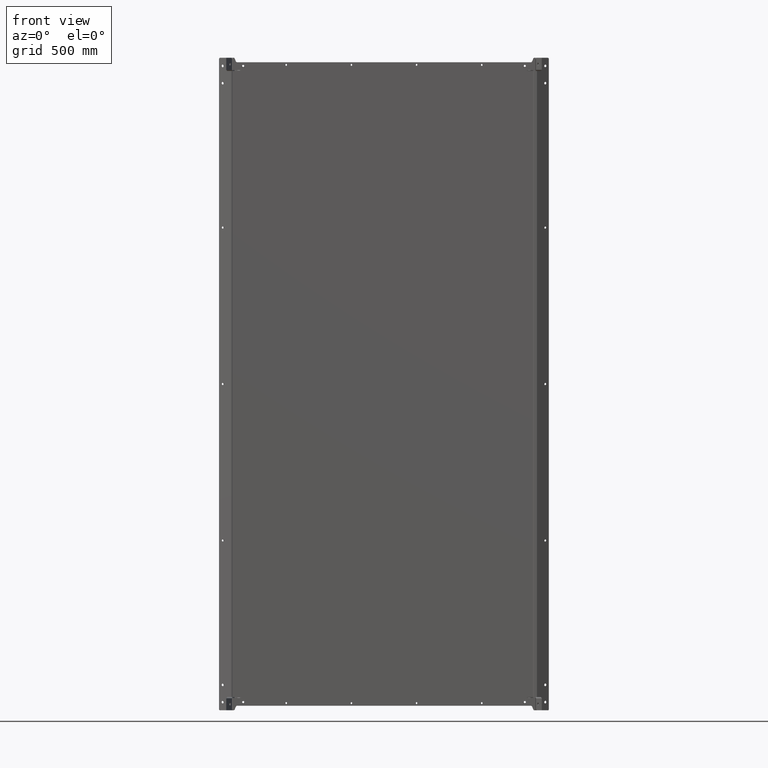
[diagram: clean part render]
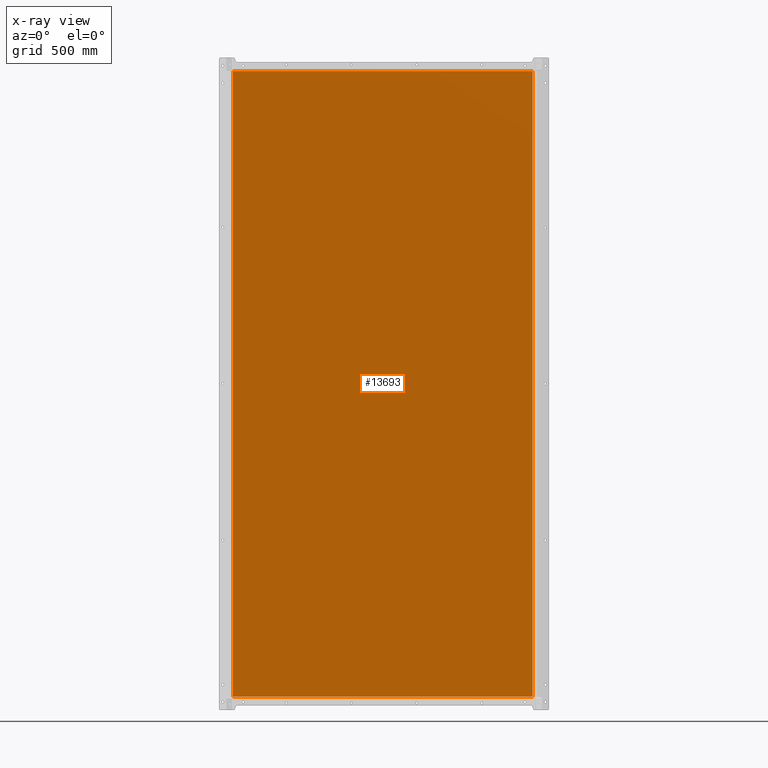
[diagram: x-ray — body ghosted, one internal face saturated and labeled with its STEP entity id]
A machine part, front view, then the same camera in x-ray: the body is ghosted and one INTERNAL B-rep face — a face not visible from any outside direction — is saturated and labeled: STEP entity #13693.
In plain terms, the highlighted planar face has unit normal (0, 1, 0).
Its self-contained STEP definition (entity closure, byte-faithful):
#628 = DIRECTION ( 'NONE',  ( 0.000000000000000000, 0.000000000000000000, -1.000000000000000000 ) ) ;
#1140 = CARTESIAN_POINT ( 'NONE',  ( 1199.999999999999773, -24.55000000000019611, 570.0000000000001137 ) ) ;
#1471 = PLANE ( 'NONE',  #7482 ) ;
#1745 = ORIENTED_EDGE ( 'NONE', *, *, #4064, .F. ) ;
#2537 = ORIENTED_EDGE ( 'NONE', *, *, #4923, .T. ) ;
#2592 = VECTOR ( 'NONE', #7640, 1000.000000000000000 ) ;
#3157 = DIRECTION ( 'NONE',  ( -1.000000000000000000, -0.000000000000000000, -0.000000000000000000 ) ) ;
#3606 = CARTESIAN_POINT ( 'NONE',  ( -1200.000000000000227, -24.55000000000000071, 573.0000000000000000 ) ) ;
#4015 = VECTOR ( 'NONE', #11395, 1000.000000000000000 ) ;
#4064 = EDGE_CURVE ( 'NONE', #12900, #8375, #4831, .T. ) ;
#4301 = CARTESIAN_POINT ( 'NONE',  ( 1199.999999999999773, -24.55000000000000071, -579.9999999999998863 ) ) ;
#4377 = CARTESIAN_POINT ( 'NONE',  ( 1199.999999999999773, -24.55000000000000071, 570.0000000000001137 ) ) ;
#4545 = CARTESIAN_POINT ( 'NONE',  ( 0.000000000000000000, -24.55000000000000071, 0.000000000000000000 ) ) ;
#4574 = EDGE_CURVE ( 'NONE', #11632, #8375, #12407, .T. ) ;
#4831 = LINE ( 'NONE', #1140, #2592 ) ;
#4923 = EDGE_CURVE ( 'NONE', #11976, #11632, #12951, .T. ) ;
#5080 = CARTESIAN_POINT ( 'NONE',  ( 1199.999999999999773, -24.55000000000000071, -579.9999999999998863 ) ) ;
#5689 = DIRECTION ( 'NONE',  ( 0.000000000000000000, 1.000000000000000000, 0.000000000000000000 ) ) ;
#7274 = VECTOR ( 'NONE', #3157, 1000.000000000000000 ) ;
#7482 = AXIS2_PLACEMENT_3D ( 'NONE', #4545, #5689, #10184 ) ;
#7640 = DIRECTION ( 'NONE',  ( -1.000000000000000000, -0.000000000000000000, -0.000000000000000000 ) ) ;
#7822 = FACE_OUTER_BOUND ( 'NONE', #11416, .T. ) ;
#8375 = VERTEX_POINT ( 'NONE', #9220 ) ;
#8406 = LINE ( 'NONE', #10415, #13811 ) ;
#8906 = ORIENTED_EDGE ( 'NONE', *, *, #4574, .T. ) ;
#9040 = EDGE_CURVE ( 'NONE', #12900, #11976, #8406, .T. ) ;
#9220 = CARTESIAN_POINT ( 'NONE',  ( -1200.000000000000227, -24.55000000000000071, 570.0000000000001137 ) ) ;
#10184 = DIRECTION ( 'NONE',  ( 0.000000000000000000, 0.000000000000000000, -1.000000000000000000 ) ) ;
#10415 = CARTESIAN_POINT ( 'NONE',  ( 1199.999999999999773, -24.55000000000000071, 573.0000000000000000 ) ) ;
#11395 = DIRECTION ( 'NONE',  ( 0.000000000000000000, 0.000000000000000000, 1.000000000000000000 ) ) ;
#11416 = EDGE_LOOP ( 'NONE', ( #1745, #11696, #2537, #8906 ) ) ;
#11632 = VERTEX_POINT ( 'NONE', #14096 ) ;
#11696 = ORIENTED_EDGE ( 'NONE', *, *, #9040, .T. ) ;
#11976 = VERTEX_POINT ( 'NONE', #5080 ) ;
#12407 = LINE ( 'NONE', #3606, #4015 ) ;
#12900 = VERTEX_POINT ( 'NONE', #4377 ) ;
#12951 = LINE ( 'NONE', #4301, #7274 ) ;
#13693 = ADVANCED_FACE ( 'NONE', ( #7822 ), #1471, .T. ) ;
#13811 = VECTOR ( 'NONE', #628, 1000.000000000000000 ) ;
#14096 = CARTESIAN_POINT ( 'NONE',  ( -1200.000000000000227, -24.55000000000000071, -579.9999999999998863 ) ) ;